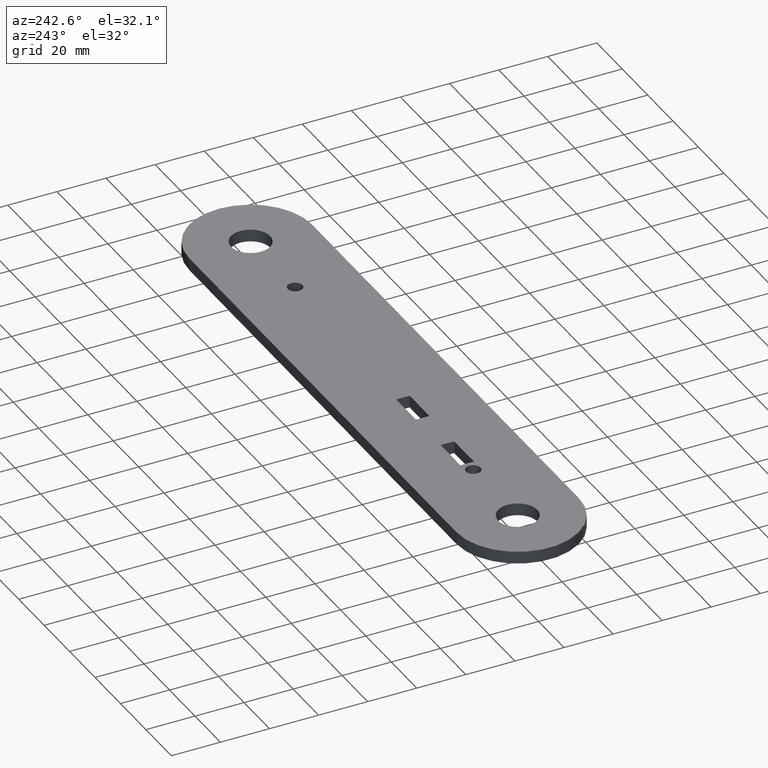
[diagram: clean part render]
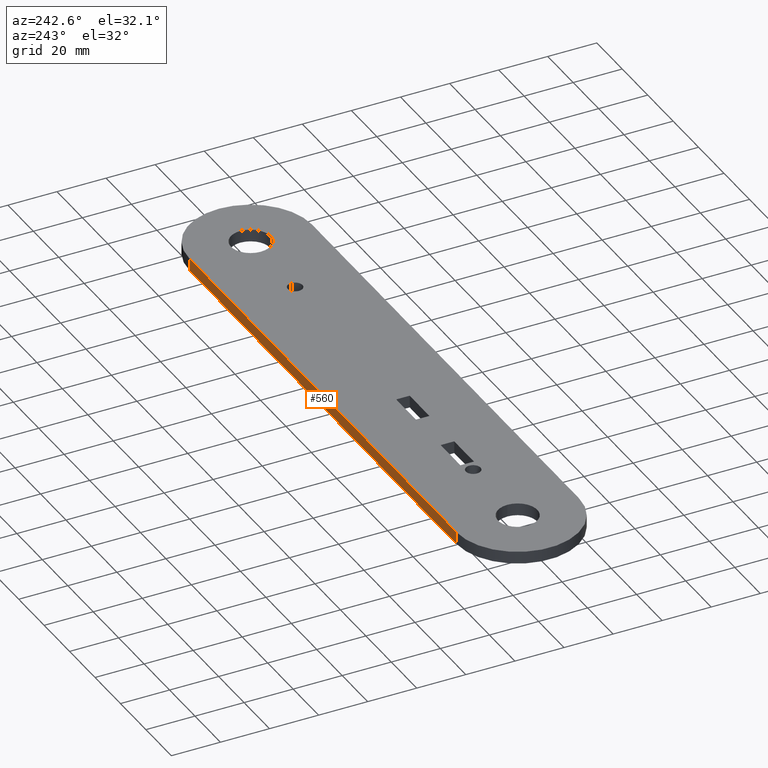
[diagram: same view with one face highlighted and labeled with its STEP entity id]
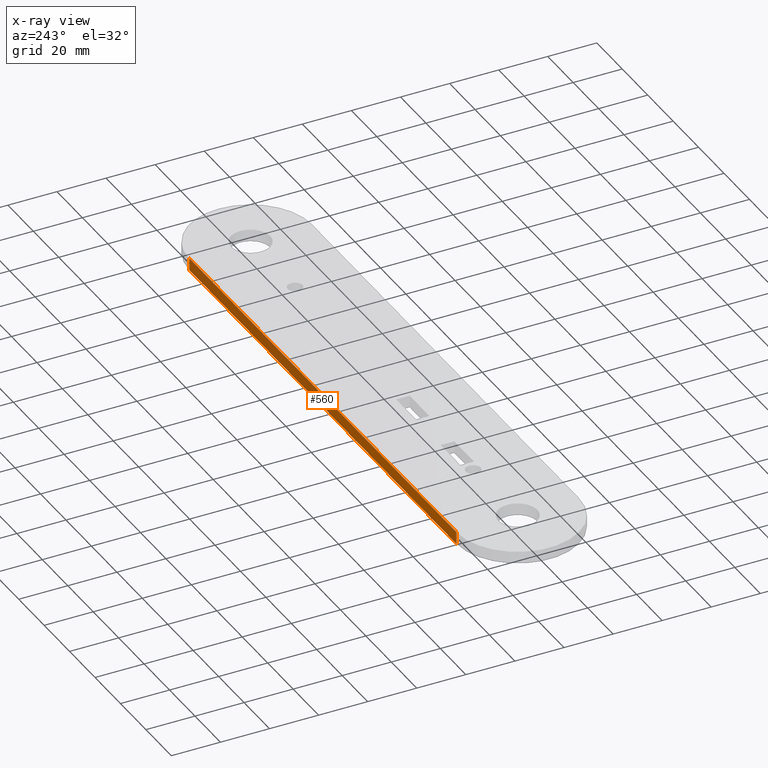
[diagram: x-ray of the same camera — body ghosted, the highlighted face saturated]
A machine part, auxiliary view. The second image highlights one B-rep face of the part: STEP entity #560.
The next image is the same camera in x-ray: the body ghosted, the highlighted face saturated — about 0% of this face is hidden behind the body in this view.
In plain terms, the highlighted planar face has unit normal (-0, 1, 0).
Its self-contained STEP definition (entity closure, byte-faithful):
#102 = DIRECTION ( 'NONE',  ( -1.000000000000000000, -1.817329355785226926E-16, 0.000000000000000000 ) ) ;
#113 = DIRECTION ( 'NONE',  ( -1.000000000000000000, -1.817329355785226926E-16, -0.000000000000000000 ) ) ;
#114 = CARTESIAN_POINT ( 'NONE',  ( -104.9999999999999858, 25.00000000000004263, -5.000000000000000000 ) ) ;
#120 = AXIS2_PLACEMENT_3D ( 'NONE', #670, #429, #102 ) ;
#141 = VERTEX_POINT ( 'NONE', #303 ) ;
#159 = FACE_OUTER_BOUND ( 'NONE', #259, .T. ) ;
#192 = VECTOR ( 'NONE', #468, 1000.000000000000000 ) ;
#195 = DIRECTION ( 'NONE',  ( 0.000000000000000000, 0.000000000000000000, 1.000000000000000000 ) ) ;
#221 = EDGE_CURVE ( 'NONE', #737, #595, #769, .T. ) ;
#222 = ORIENTED_EDGE ( 'NONE', *, *, #824, .T. ) ;
#247 = LINE ( 'NONE', #837, #487 ) ;
#256 = CARTESIAN_POINT ( 'NONE',  ( -104.9999999999999858, 25.00000000000004263, -5.000000000000000000 ) ) ;
#259 = EDGE_LOOP ( 'NONE', ( #788, #383, #222, #664 ) ) ;
#303 = CARTESIAN_POINT ( 'NONE',  ( 104.9999999999999858, 25.00000000000008171, -5.000000000000000000 ) ) ;
#383 = ORIENTED_EDGE ( 'NONE', *, *, #671, .F. ) ;
#416 = PLANE ( 'NONE',  #120 ) ;
#420 = VECTOR ( 'NONE', #434, 1000.000000000000000 ) ;
#429 = DIRECTION ( 'NONE',  ( -1.817329355785226926E-16, 1.000000000000000000, 0.000000000000000000 ) ) ;
#434 = DIRECTION ( 'NONE',  ( 0.000000000000000000, 0.000000000000000000, 1.000000000000000000 ) ) ;
#467 = VERTEX_POINT ( 'NONE', #723 ) ;
#468 = DIRECTION ( 'NONE',  ( -1.000000000000000000, -1.817329355785226926E-16, -0.000000000000000000 ) ) ;
#487 = VECTOR ( 'NONE', #113, 1000.000000000000000 ) ;
#500 = CARTESIAN_POINT ( 'NONE',  ( 104.9999999999999858, 25.00000000000008171, -5.000000000000000000 ) ) ;
#560 = ADVANCED_FACE ( 'NONE', ( #159 ), #416, .T. ) ;
#581 = VECTOR ( 'NONE', #195, 1000.000000000000000 ) ;
#595 = VERTEX_POINT ( 'NONE', #621 ) ;
#621 = CARTESIAN_POINT ( 'NONE',  ( -104.9999999999999858, 25.00000000000004263, 0.000000000000000000 ) ) ;
#664 = ORIENTED_EDGE ( 'NONE', *, *, #221, .T. ) ;
#670 = CARTESIAN_POINT ( 'NONE',  ( -104.9999999999999858, 25.00000000000004263, -5.000000000000000000 ) ) ;
#671 = EDGE_CURVE ( 'NONE', #141, #467, #697, .T. ) ;
#697 = LINE ( 'NONE', #500, #420 ) ;
#723 = CARTESIAN_POINT ( 'NONE',  ( 104.9999999999999858, 25.00000000000008171, 0.000000000000000000 ) ) ;
#736 = EDGE_CURVE ( 'NONE', #467, #595, #247, .T. ) ;
#737 = VERTEX_POINT ( 'NONE', #256 ) ;
#769 = LINE ( 'NONE', #114, #581 ) ;
#785 = LINE ( 'NONE', #789, #192 ) ;
#788 = ORIENTED_EDGE ( 'NONE', *, *, #736, .F. ) ;
#789 = CARTESIAN_POINT ( 'NONE',  ( -104.9999999999999858, 25.00000000000004263, -5.000000000000000000 ) ) ;
#824 = EDGE_CURVE ( 'NONE', #141, #737, #785, .T. ) ;
#837 = CARTESIAN_POINT ( 'NONE',  ( -104.9999999999999858, 25.00000000000004263, 0.000000000000000000 ) ) ;